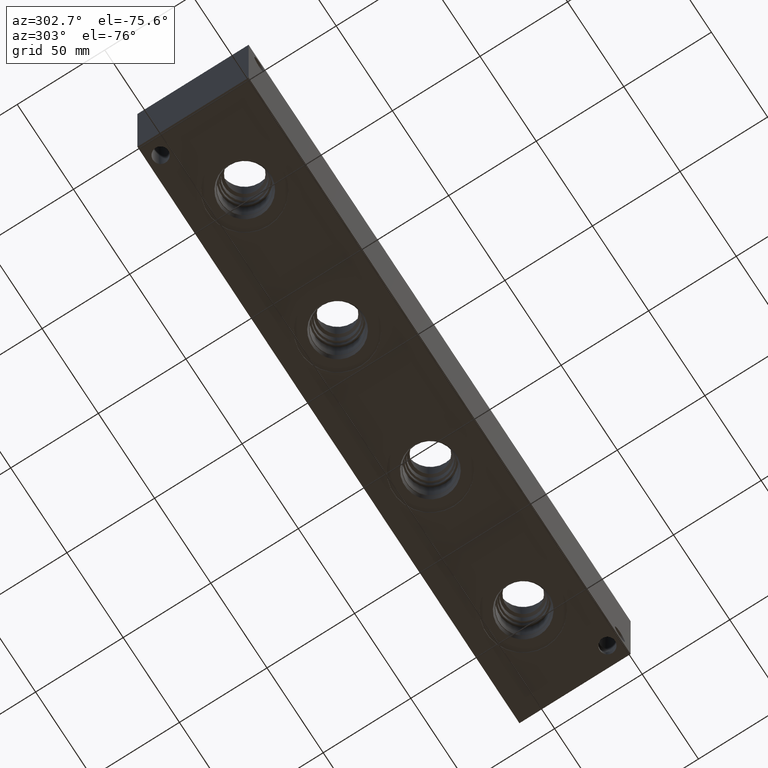
[diagram: clean part render]
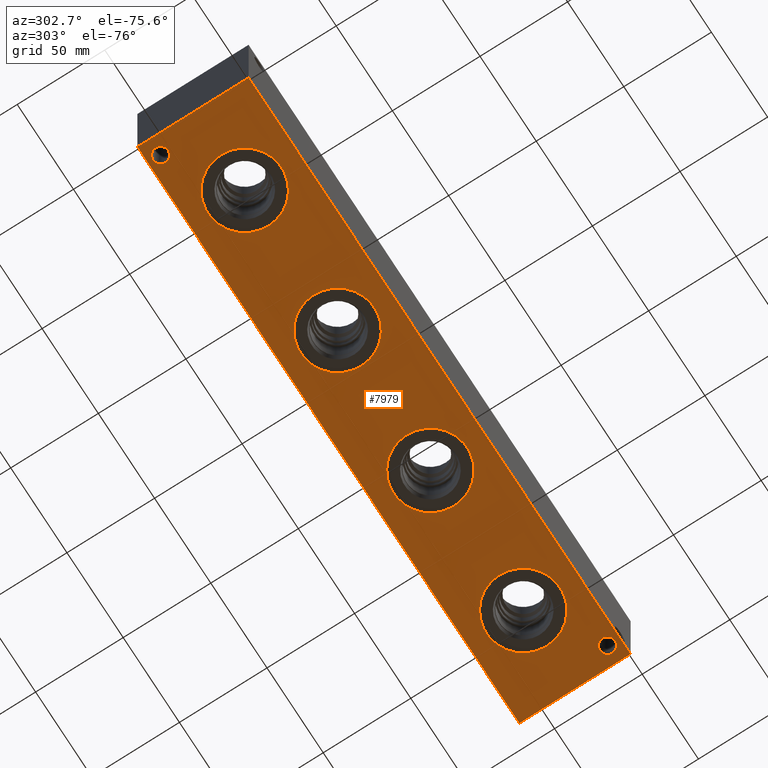
[diagram: same view with one face highlighted and labeled with its STEP entity id]
A machine part, auxiliary view. The second image highlights one B-rep face of the part: STEP entity #7979.
In plain terms, the highlighted planar face has unit normal (0, 0, 1).
Its self-contained STEP definition (entity closure, byte-faithful):
#120=CIRCLE('',#8248,4.3688);
#121=CIRCLE('',#8250,4.3688);
#122=CIRCLE('',#8252,21.0185);
#123=CIRCLE('',#8253,21.0185);
#133=CIRCLE('',#8268,21.0185);
#134=CIRCLE('',#8269,21.0185);
#144=CIRCLE('',#8284,21.0185);
#145=CIRCLE('',#8285,21.0185);
#192=CIRCLE('',#8361,21.0185);
#193=CIRCLE('',#8362,21.0185);
#323=FACE_BOUND('',#1453,.T.);
#324=FACE_BOUND('',#1454,.T.);
#325=FACE_BOUND('',#1455,.T.);
#326=FACE_BOUND('',#1456,.T.);
#327=FACE_BOUND('',#1457,.T.);
#328=FACE_BOUND('',#1458,.T.);
#991=FACE_OUTER_BOUND('',#1452,.T.);
#1452=EDGE_LOOP('',(#7016,#7017,#7018,#7019));
#1453=EDGE_LOOP('',(#7020));
#1454=EDGE_LOOP('',(#7021));
#1455=EDGE_LOOP('',(#7022,#7023));
#1456=EDGE_LOOP('',(#7024,#7025));
#1457=EDGE_LOOP('',(#7026,#7027));
#1458=EDGE_LOOP('',(#7028,#7029));
#2210=LINE('',#13594,#2969);
#2213=LINE('',#13599,#2972);
#2215=LINE('',#13603,#2974);
#2217=LINE('',#13606,#2976);
#2969=VECTOR('',#10234,10.);
#2972=VECTOR('',#10239,10.);
#2974=VECTOR('',#10243,10.);
#2976=VECTOR('',#10247,10.);
#3561=VERTEX_POINT('',#13128);
#3562=VERTEX_POINT('',#13132);
#3563=VERTEX_POINT('',#13136);
#3564=VERTEX_POINT('',#13137);
#3574=VERTEX_POINT('',#13167);
#3575=VERTEX_POINT('',#13168);
#3585=VERTEX_POINT('',#13198);
#3586=VERTEX_POINT('',#13199);
#3633=VERTEX_POINT('',#13347);
#3634=VERTEX_POINT('',#13348);
#3711=VERTEX_POINT('',#13592);
#3712=VERTEX_POINT('',#13593);
#3713=VERTEX_POINT('',#13598);
#3714=VERTEX_POINT('',#13602);
#4589=EDGE_CURVE('',#3561,#3561,#120,.T.);
#4591=EDGE_CURVE('',#3562,#3562,#121,.T.);
#4592=EDGE_CURVE('',#3563,#3564,#122,.T.);
#4593=EDGE_CURVE('',#3564,#3563,#123,.T.);
#4607=EDGE_CURVE('',#3574,#3575,#133,.T.);
#4608=EDGE_CURVE('',#3575,#3574,#134,.T.);
#4622=EDGE_CURVE('',#3585,#3586,#144,.T.);
#4623=EDGE_CURVE('',#3586,#3585,#145,.T.);
#4694=EDGE_CURVE('',#3633,#3634,#192,.T.);
#4695=EDGE_CURVE('',#3634,#3633,#193,.T.);
#4812=EDGE_CURVE('',#3711,#3712,#2210,.T.);
#4815=EDGE_CURVE('',#3713,#3711,#2213,.T.);
#4817=EDGE_CURVE('',#3714,#3713,#2215,.T.);
#4819=EDGE_CURVE('',#3712,#3714,#2217,.T.);
#7016=ORIENTED_EDGE('',*,*,#4819,.F.);
#7017=ORIENTED_EDGE('',*,*,#4812,.F.);
#7018=ORIENTED_EDGE('',*,*,#4815,.F.);
#7019=ORIENTED_EDGE('',*,*,#4817,.F.);
#7020=ORIENTED_EDGE('',*,*,#4589,.T.);
#7021=ORIENTED_EDGE('',*,*,#4591,.T.);
#7022=ORIENTED_EDGE('',*,*,#4592,.T.);
#7023=ORIENTED_EDGE('',*,*,#4593,.T.);
#7024=ORIENTED_EDGE('',*,*,#4607,.T.);
#7025=ORIENTED_EDGE('',*,*,#4608,.T.);
#7026=ORIENTED_EDGE('',*,*,#4622,.T.);
#7027=ORIENTED_EDGE('',*,*,#4623,.T.);
#7028=ORIENTED_EDGE('',*,*,#4694,.T.);
#7029=ORIENTED_EDGE('',*,*,#4695,.T.);
#7272=PLANE('',#8492);
#7979=ADVANCED_FACE('',(#991,#323,#324,#325,#326,#327,#328),#7272,.F.);
#8248=AXIS2_PLACEMENT_3D('',#13130,#9681,#9682);
#8250=AXIS2_PLACEMENT_3D('',#13134,#9686,#9687);
#8252=AXIS2_PLACEMENT_3D('',#13138,#9690,#9691);
#8253=AXIS2_PLACEMENT_3D('',#13139,#9692,#9693);
#8268=AXIS2_PLACEMENT_3D('',#13169,#9726,#9727);
#8269=AXIS2_PLACEMENT_3D('',#13170,#9728,#9729);
#8284=AXIS2_PLACEMENT_3D('',#13200,#9762,#9763);
#8285=AXIS2_PLACEMENT_3D('',#13201,#9764,#9765);
#8361=AXIS2_PLACEMENT_3D('',#13349,#9940,#9941);
#8362=AXIS2_PLACEMENT_3D('',#13350,#9942,#9943);
#8492=AXIS2_PLACEMENT_3D('',#13608,#10250,#10251);
#9681=DIRECTION('center_axis',(0.,0.,1.));
#9682=DIRECTION('ref_axis',(1.,0.,0.));
#9686=DIRECTION('center_axis',(0.,0.,1.));
#9687=DIRECTION('ref_axis',(1.,0.,0.));
#9690=DIRECTION('center_axis',(0.,0.,1.));
#9691=DIRECTION('ref_axis',(1.,0.,0.));
#9692=DIRECTION('center_axis',(0.,0.,1.));
#9693=DIRECTION('ref_axis',(1.,0.,0.));
#9726=DIRECTION('center_axis',(0.,0.,1.));
#9727=DIRECTION('ref_axis',(1.,0.,0.));
#9728=DIRECTION('center_axis',(0.,0.,1.));
#9729=DIRECTION('ref_axis',(1.,0.,0.));
#9762=DIRECTION('center_axis',(0.,0.,1.));
#9763=DIRECTION('ref_axis',(1.,0.,0.));
#9764=DIRECTION('center_axis',(0.,0.,1.));
#9765=DIRECTION('ref_axis',(1.,0.,0.));
#9940=DIRECTION('center_axis',(0.,0.,1.));
#9941=DIRECTION('ref_axis',(1.,0.,0.));
#9942=DIRECTION('center_axis',(0.,0.,1.));
#9943=DIRECTION('ref_axis',(1.,0.,0.));
#10234=DIRECTION('',(0.,-1.,0.));
#10239=DIRECTION('',(-1.,0.,0.));
#10243=DIRECTION('',(0.,1.,0.));
#10247=DIRECTION('',(1.,0.,0.));
#10250=DIRECTION('center_axis',(0.,0.,1.));
#10251=DIRECTION('ref_axis',(1.,0.,0.));
#13128=CARTESIAN_POINT('',(5.1562,56.3626,0.));
#13130=CARTESIAN_POINT('Origin',(9.525,56.3626,0.));
#13132=CARTESIAN_POINT('',(325.8312,7.1374,0.));
#13134=CARTESIAN_POINT('Origin',(330.2,7.1374,0.));
#13136=CARTESIAN_POINT('',(314.6933,31.75,0.));
#13137=CARTESIAN_POINT('',(272.6563,31.75,0.));
#13138=CARTESIAN_POINT('Origin',(293.6748,31.75,0.));
#13139=CARTESIAN_POINT('Origin',(293.6748,31.75,0.));
#13167=CARTESIAN_POINT('',(232.1433,31.75,0.));
#13168=CARTESIAN_POINT('',(190.1063,31.75,0.));
#13169=CARTESIAN_POINT('Origin',(211.1248,31.75,0.));
#13170=CARTESIAN_POINT('Origin',(211.1248,31.75,0.));
#13198=CARTESIAN_POINT('',(149.5933,31.75,0.));
#13199=CARTESIAN_POINT('',(107.5563,31.75,0.));
#13200=CARTESIAN_POINT('Origin',(128.5748,31.75,0.));
#13201=CARTESIAN_POINT('Origin',(128.5748,31.75,0.));
#13347=CARTESIAN_POINT('',(67.0433,31.75,0.));
#13348=CARTESIAN_POINT('',(25.0063,31.75,0.));
#13349=CARTESIAN_POINT('Origin',(46.0248,31.75,0.));
#13350=CARTESIAN_POINT('Origin',(46.0248,31.75,0.));
#13592=CARTESIAN_POINT('',(0.,63.5,0.));
#13593=CARTESIAN_POINT('',(0.,0.,0.));
#13594=CARTESIAN_POINT('',(0.,63.5,0.));
#13598=CARTESIAN_POINT('',(339.725,63.5,0.));
#13599=CARTESIAN_POINT('',(339.725,63.5,0.));
#13602=CARTESIAN_POINT('',(339.725,0.,0.));
#13603=CARTESIAN_POINT('',(339.725,0.,0.));
#13606=CARTESIAN_POINT('',(0.,0.,0.));
#13608=CARTESIAN_POINT('Origin',(169.8625,31.75,0.));